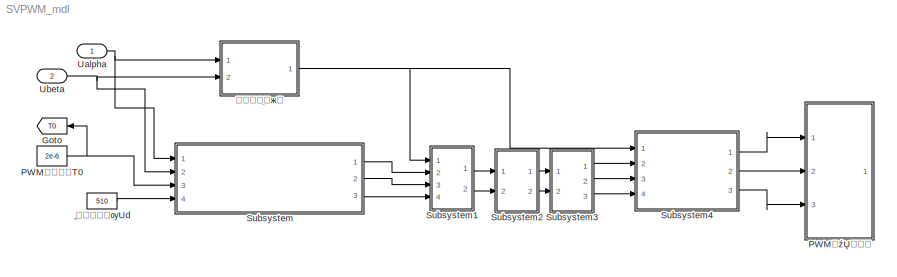
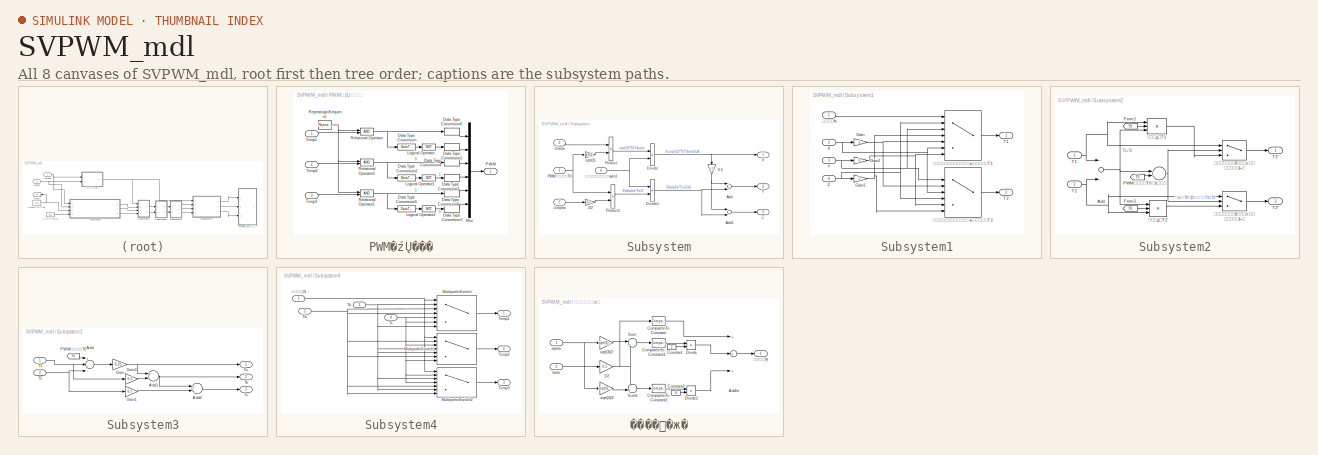
[diagram: thumbnail index - all 8 canvases of the model, root first then tree order]
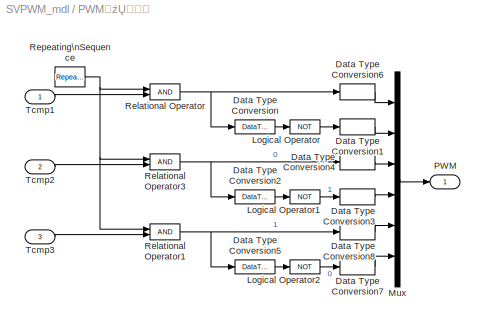
MODEL SVPWM_mdl
KIND model
BLOCK [Goto] Goto
  GotoTag = T0
  SID = 180
  TagVisibility = global
BLOCK [SubSystem] PWMÐÅºÅ²úÉú
  Ports = [3, 1]
  RequestExecContextInheritance = off
  SID = 156
  Variant = off
BLOCK [DataTypeConversion] PWMÐÅºÅ²úÉú/Data Type Conversion
  OutDataTypeStr = boolean
  RndMeth = Floor
  SID = 160
  SaturateOnIntegerOverflow = off
BLOCK [DataTypeConversion] PWMÐÅºÅ²úÉú/Data Type Conversion1
  OutDataTypeStr = double
  RndMeth = Floor
  SID = 161
  SaturateOnIntegerOverflow = off
BLOCK [DataTypeConversion] PWMÐÅºÅ²úÉú/Data Type Conversion2
  OutDataTypeStr = boolean
  RndMeth = Floor
  SID = 162
  SaturateOnIntegerOverflow = off
BLOCK [DataTypeConversion] PWMÐÅºÅ²úÉú/Data Type Conversion3
  OutDataTypeStr = double
  RndMeth = Floor
  SID = 163
  SaturateOnIntegerOverflow = off
BLOCK [DataTypeConversion] PWMÐÅºÅ²úÉú/Data Type Conversion4
  OutDataTypeStr = double
  RndMeth = Floor
  SID = 164
  SaturateOnIntegerOverflow = off
BLOCK [DataTypeConversion] PWMÐÅºÅ²úÉú/Data Type Conversion5
  OutDataTypeStr = boolean
  RndMeth = Floor
  SID = 165
  SaturateOnIntegerOverflow = off
BLOCK [DataTypeConversion] PWMÐÅºÅ²úÉú/Data Type Conversion6
  OutDataTypeStr = double
  RndMeth = Floor
  SID = 166
  SaturateOnIntegerOverflow = off
BLOCK [DataTypeConversion] PWMÐÅºÅ²úÉú/Data Type Conversion7
  OutDataTypeStr = double
  RndMeth = Floor
  SID = 167
  SaturateOnIntegerOverflow = off
BLOCK [DataTypeConversion] PWMÐÅºÅ²úÉú/Data Type Conversion8
  OutDataTypeStr = double
  RndMeth = Floor
  SID = 168
  SaturateOnIntegerOverflow = off
BLOCK [Logic] PWMÐÅºÅ²úÉú/Logical Operator
  AllPortsSameDT = off
  Operator = NOT
  OutDataTypeStr = boolean
  Ports = [1, 1]
  SID = 169
BLOCK [Logic] PWMÐÅºÅ²úÉú/Logical Operator1
  AllPortsSameDT = off
  Operator = NOT
  OutDataTypeStr = boolean
  Ports = [1, 1]
  SID = 170
BLOCK [Logic] PWMÐÅºÅ²úÉú/Logical Operator2
  AllPortsSameDT = off
  Operator = NOT
  OutDataTypeStr = boolean
  Ports = [1, 1]
  SID = 171
BLOCK [Mux] PWMÐÅºÅ²úÉú/Mux
  DisplayOption = bar
  Inputs = 6
  Ports = [6, 1]
  SID = 172
BLOCK [Outport] PWMÐÅºÅ²úÉú/PWM
  IconDisplay = Port number
  SID = 177
BLOCK [RelationalOperator] PWMÐÅºÅ²úÉú/Relational Operator
  InputSameDT = off
  OutDataTypeStr = boolean
  Ports = [2, 1]
  SID = 173
BLOCK [RelationalOperator] PWMÐÅºÅ²úÉú/Relational Operator1
  InputSameDT = off
  OutDataTypeStr = boolean
  Ports = [2, 1]
  SID = 174
BLOCK [RelationalOperator] PWMÐÅºÅ²úÉú/Relational Operator3
  InputSameDT = off
  OutDataTypeStr = boolean
  Ports = [2, 1]
  SID = 175
BLOCK [Reference] PWMÐÅºÅ²úÉú/Repeating\nSequence  REF=simulink/Sources/Repeating\nSequence
  Ports = [0, 1]
  SID = 176
  SourceBlock = simulink/Sources/Repeating\nSequence
  SourceProductBaseCode = SL
  SourceProductName = Simulink
  SourceType = Repeating table
  rep_seq_t = [0 1e-4 2e-4]
  rep_seq_y = [0 1.3e-6 0]
BLOCK [Inport] PWMÐÅºÅ²úÉú/Tcmp1
  IconDisplay = Port number
  SID = 157
BLOCK [Inport] PWMÐÅºÅ²úÉú/Tcmp2
  IconDisplay = Port number
  Port = 2
  SID = 158
BLOCK [Inport] PWMÐÅºÅ²úÉú/Tcmp3
  IconDisplay = Port number
  Port = 3
  SID = 159
BLOCK [Constant] PWMÖÜÆÚT0
  SID = 181
  Value = 2e-6
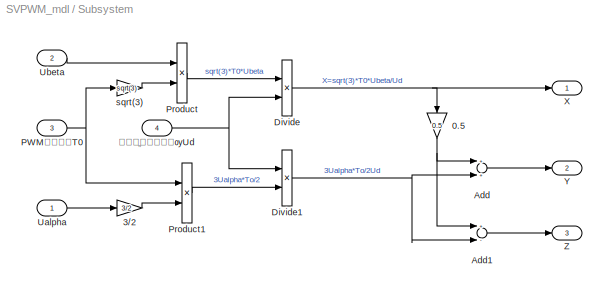
BLOCK [SubSystem] Subsystem
  Ports = [4, 3]
  RequestExecContextInheritance = off
  SID = 52
  Variant = off
BLOCK [Gain] Subsystem/0.5
  Gain = 0.5
  OutDataTypeStr = Inherit: Inherit via internal rule
  ParamDataTypeStr = Inherit: Inherit via internal rule
  SID = 40
  SaturateOnIntegerOverflow = off
BLOCK [Gain] Subsystem/3//2
  Gain = 3/2
  OutDataTypeStr = Inherit: Inherit via internal rule
  ParamDataTypeStr = Inherit: Inherit via internal rule
  SID = 41
  SaturateOnIntegerOverflow = off
BLOCK [Sum] Subsystem/Add
  InputSameDT = off
  OutDataTypeStr = Inherit: Inherit via internal rule
  Ports = [2, 1]
  SID = 42
  SaturateOnIntegerOverflow = off
BLOCK [Sum] Subsystem/Add1
  InputSameDT = off
  Inputs = +-
  OutDataTypeStr = Inherit: Inherit via internal rule
  Ports = [2, 1]
  SID = 43
  SaturateOnIntegerOverflow = off
BLOCK [Product] Subsystem/Divide
  InputSameDT = off
  Inputs = */
  OutDataTypeStr = Inherit: Inherit via internal rule
  Ports = [2, 1]
  RndMeth = Floor
  SID = 44
  SaturateOnIntegerOverflow = off
BLOCK [Product] Subsystem/Divide1
  InputSameDT = off
  Inputs = /*
  OutDataTypeStr = Inherit: Inherit via internal rule
  Ports = [2, 1]
  RndMeth = Floor
  SID = 45
  SaturateOnIntegerOverflow = off
BLOCK [Inport] Subsystem/PWMÖÜÆÚT0
  IconDisplay = Port number
  Port = 3
  SID = 55
BLOCK [Product] Subsystem/Product
  InputSameDT = off
  OutDataTypeStr = Inherit: Inherit via internal rule
  Ports = [2, 1]
  RndMeth = Floor
  SID = 46
  SaturateOnIntegerOverflow = off
BLOCK [Product] Subsystem/Product1
  InputSameDT = off
  OutDataTypeStr = Inherit: Inherit via internal rule
  Ports = [2, 1]
  RndMeth = Floor
  SID = 47
  SaturateOnIntegerOverflow = off
BLOCK [Inport] Subsystem/Ualpha
  IconDisplay = Port number
  SID = 53
BLOCK [Inport] Subsystem/Ubeta
  IconDisplay = Port number
  Port = 2
  SID = 54
BLOCK [Outport] Subsystem/X
  IconDisplay = Port number
  SID = 57
BLOCK [Outport] Subsystem/Y
  IconDisplay = Port number
  Port = 2
  SID = 58
BLOCK [Outport] Subsystem/Z
  IconDisplay = Port number
  Port = 3
  SID = 59
BLOCK [Gain] Subsystem/sqrt(3) 
  Gain = sqrt(3)
  OutDataTypeStr = Inherit: Inherit via internal rule
  ParamDataTypeStr = Inherit: Inherit via internal rule
  SID = 48
  SaturateOnIntegerOverflow = off
BLOCK [Inport] Subsystem/逆变直流侧电压Ud
  IconDisplay = Port number
  Port = 4
  SID = 56
BLOCK [SubSystem] Subsystem1
  Ports = [4, 2]
  RequestExecContextInheritance = off
  SID = 89
  Variant = off
BLOCK [Gain] Subsystem1/Gain
  Gain = -1
  OutDataTypeStr = Inherit: Inherit via internal rule
  ParamDataTypeStr = Inherit: Inherit via internal rule
  SID = 76
  SaturateOnIntegerOverflow = off
BLOCK [Gain] Subsystem1/Gain1
  Gain = -1
  OutDataTypeStr = Inherit: Inherit via internal rule
  ParamDataTypeStr = Inherit: Inherit via internal rule
  SID = 77
  SaturateOnIntegerOverflow = off
BLOCK [Gain] Subsystem1/Gain2
  Gain = -1
  OutDataTypeStr = Inherit: Inherit via internal rule
  ParamDataTypeStr = Inherit: Inherit via internal rule
  SID = 78
  SaturateOnIntegerOverflow = off
BLOCK [Outport] Subsystem1/T1
  IconDisplay = Port number
  SID = 94
BLOCK [Outport] Subsystem1/T2
  IconDisplay = Port number
  Port = 2
  SID = 95
BLOCK [Inport] Subsystem1/X
  IconDisplay = Port number
  Port = 2
  SID = 91
BLOCK [Inport] Subsystem1/Y
  IconDisplay = Port number
  Port = 3
  SID = 92
BLOCK [Inport] Subsystem1/Z
  IconDisplay = Port number
  Port = 4
  SID = 93
BLOCK [MultiPortSwitch] Subsystem1/根据输入扇区 选择输出T1
  InputSameDT = off
  Inputs = 6
  Ports = [7, 1]
  SID = 85
  SaturateOnIntegerOverflow = off
BLOCK [MultiPortSwitch] Subsystem1/根据输入扇区 选择输出T2
  InputSameDT = off
  Inputs = 6
  Ports = [7, 1]
  SID = 86
  SaturateOnIntegerOverflow = off
BLOCK [Inport] Subsystem1/ÉÈÇøÖµN
  IconDisplay = Port number
  SID = 90
BLOCK [SubSystem] Subsystem2
  Ports = [2, 2]
  RequestExecContextInheritance = off
  SID = 109
  Variant = off
BLOCK [Sum] Subsystem2/Add
  InputSameDT = off
  OutDataTypeStr = Inherit: Inherit via internal rule
  Ports = [2, 1]
  SID = 98
  SaturateOnIntegerOverflow = off
BLOCK [From] Subsystem2/From1
  GotoTag = T0
  SID = 99
  TagVisibility = global
BLOCK [From] Subsystem2/From2
  GotoTag = T0
  SID = 100
  TagVisibility = global
BLOCK [From] Subsystem2/PWMÖÜÆÚT0
  GotoTag = T0
  SID = 101
  TagVisibility = global
BLOCK [Inport] Subsystem2/T1
  IconDisplay = Port number
  SID = 110
BLOCK [Outport] Subsystem2/T1*
  IconDisplay = Port number
  SID = 112
BLOCK [Inport] Subsystem2/T2
  IconDisplay = Port number
  Port = 2
  SID = 111
BLOCK [Outport] Subsystem2/T2*
  IconDisplay = Port number
  Port = 2
  SID = 113
BLOCK [Sum] Subsystem2/比较器
  InputSameDT = off
  Inputs = -+
  OutDataTypeStr = Inherit: Inherit via internal rule
  Ports = [2, 1]
  SID = 104
  SaturateOnIntegerOverflow = off
BLOCK [Product] Subsystem2/µ÷ÖÆºóT1
  InputSameDT = off
  Inputs = **/
  OutDataTypeStr = Inherit: Inherit via internal rule
  Ports = [3, 1]
  RndMeth = Floor
  SID = 105
  SaturateOnIntegerOverflow = off
BLOCK [Product] Subsystem2/µ÷ÖÆºóT2
  InputSameDT = off
  Inputs = /**
  OutDataTypeStr = Inherit: Inherit via internal rule
  Ports = [3, 1]
  RndMeth = Floor
  SID = 106
  SaturateOnIntegerOverflow = off
BLOCK [Switch] Subsystem2/如果大于0则切换开关到上方
  Criteria = u2 > Threshold
  InputSameDT = off
  SID = 102
  SaturateOnIntegerOverflow = off
BLOCK [Switch] Subsystem2/如果大于0则切换开关到上方 
  Criteria = u2 > Threshold
  InputSameDT = off
  SID = 103
  SaturateOnIntegerOverflow = off
BLOCK [SubSystem] Subsystem3
  Ports = [2, 3]
  RequestExecContextInheritance = off
  SID = 132
  Variant = off
BLOCK [Sum] Subsystem3/Add
  InputSameDT = off
  Inputs = +--
  OutDataTypeStr = Inherit: Inherit via internal rule
  Ports = [3, 1]
  SID = 116
  SaturateOnIntegerOverflow = off
BLOCK [Sum] Subsystem3/Add1
  InputSameDT = off
  OutDataTypeStr = Inherit: Inherit via internal rule
  Ports = [2, 1]
  SID = 117
  SaturateOnIntegerOverflow = off
BLOCK [Sum] Subsystem3/Add2
  InputSameDT = off
  OutDataTypeStr = Inherit: Inherit via internal rule
  Ports = [2, 1]
  SID = 118
  SaturateOnIntegerOverflow = off
BLOCK [Gain] Subsystem3/Gain
  Gain = 0.25
  OutDataTypeStr = Inherit: Inherit via internal rule
  ParamDataTypeStr = Inherit: Inherit via internal rule
  SID = 123
  SaturateOnIntegerOverflow = off
BLOCK [Gain] Subsystem3/Gain1
  Gain = 0.5
  OutDataTypeStr = Inherit: Inherit via internal rule
  ParamDataTypeStr = Inherit: Inherit via internal rule
  SID = 124
  SaturateOnIntegerOverflow = off
BLOCK [Gain] Subsystem3/Gain3
  Gain = 0.5
  OutDataTypeStr = Inherit: Inherit via internal rule
  ParamDataTypeStr = Inherit: Inherit via internal rule
  SID = 125
  SaturateOnIntegerOverflow = off
BLOCK [From] Subsystem3/PWMÖÜÆÚT0
  GotoTag = T0
  SID = 128
  TagVisibility = global
BLOCK [Inport] Subsystem3/T1
  IconDisplay = Port number
  SID = 133
BLOCK [Inport] Subsystem3/T2
  IconDisplay = Port number
  Port = 2
  SID = 134
BLOCK [Outport] Subsystem3/Ta
  IconDisplay = Port number
  SID = 135
BLOCK [Outport] Subsystem3/Tb
  IconDisplay = Port number
  Port = 2
  SID = 136
BLOCK [Outport] Subsystem3/Tc
  IconDisplay = Port number
  Port = 3
  SID = 137
BLOCK [SubSystem] Subsystem4
  Ports = [4, 3]
  RequestExecContextInheritance = off
  SID = 148
  Variant = off
BLOCK [MultiPortSwitch] Subsystem4/Multiport\nSwitch
  InputSameDT = off
  Inputs = 6
  OutDataTypeStr = double
  Ports = [7, 1]
  SID = 142
  SaturateOnIntegerOverflow = off
BLOCK [MultiPortSwitch] Subsystem4/Multiport\nSwitch1
  InputSameDT = off
  Inputs = 6
  OutDataTypeStr = double
  Ports = [7, 1]
  SID = 143
  SaturateOnIntegerOverflow = off
BLOCK [MultiPortSwitch] Subsystem4/Multiport\nSwitch2
  InputSameDT = off
  Inputs = 6
  OutDataTypeStr = double
  Ports = [7, 1]
  SID = 144
  SaturateOnIntegerOverflow = off
BLOCK [Inport] Subsystem4/Ta
  IconDisplay = Port number
  Port = 2
  SID = 150
BLOCK [Inport] Subsystem4/Tb
  IconDisplay = Port number
  Port = 3
  SID = 151
BLOCK [Inport] Subsystem4/Tc
  IconDisplay = Port number
  Port = 4
  SID = 152
BLOCK [Outport] Subsystem4/Tcmp1
  IconDisplay = Port number
  SID = 153
BLOCK [Outport] Subsystem4/Tcmp2
  IconDisplay = Port number
  Port = 2
  SID = 154
BLOCK [Outport] Subsystem4/Tcmp3
  IconDisplay = Port number
  Port = 3
  SID = 155
BLOCK [Inport] Subsystem4/ÉÈÇøÖµN
  IconDisplay = Port number
  SID = 149
BLOCK [Inport] Ualpha
  IconDisplay = Port number
  SID = 178
BLOCK [Inport] Ubeta
  IconDisplay = Port number
  Port = 2
  SID = 179
BLOCK [SubSystem] 扇区值判定
  Ports = [2, 1]
  RequestExecContextInheritance = off
  SID = 32
  Variant = off
BLOCK [Gain] 扇区值判定/-sqrt(3)//2
  Gain = -sqrt(3)/2
  OutDataTypeStr = Inherit: Inherit via internal rule
  ParamDataTypeStr = Inherit: Inherit via internal rule
  SID = 16
  SaturateOnIntegerOverflow = off
BLOCK [Gain] 扇区值判定/1//2
  Gain = 0.5
  OutDataTypeStr = Inherit: Inherit via internal rule
  ParamDataTypeStr = Inherit: Inherit via internal rule
  SID = 14
  SaturateOnIntegerOverflow = off
BLOCK [Sum] 扇区值判定/Add\n
  InputSameDT = off
  Inputs = +++
  OutDataTypeStr = Inherit: Inherit via internal rule
  Ports = [3, 1]
  SID = 30
  SaturateOnIntegerOverflow = off
BLOCK [Reference] 扇区值判定/Compare\nTo Constant  REF=simulink/Logic and Bit\nOperations/Compare\nTo Constant
  OutDataTypeStr = boolean
  Ports = [1, 1]
  SID = 23
  SourceBlock = simulink/Logic and Bit\nOperations/Compare\nTo Constant
  SourceProductBaseCode = SL
  SourceProductName = Simulink
  SourceType = Compare To Constant
  ZeroCross = on
  const = 0
  relop = >
BLOCK [Reference] 扇区值判定/Compare\nTo Constant1  REF=simulink/Logic and Bit\nOperations/Compare\nTo Constant
  OutDataTypeStr = boolean
  Ports = [1, 1]
  SID = 24
  SourceBlock = simulink/Logic and Bit\nOperations/Compare\nTo Constant
  SourceProductBaseCode = SL
  SourceProductName = Simulink
  SourceType = Compare To Constant
  ZeroCross = on
  const = 0
  relop = >
BLOCK [Reference] 扇区值判定/Compare\nTo Constant2  REF=simulink/Logic and Bit\nOperations/Compare\nTo Constant
  OutDataTypeStr = boolean
  Ports = [1, 1]
  SID = 25
  SourceBlock = simulink/Logic and Bit\nOperations/Compare\nTo Constant
  SourceProductBaseCode = SL
  SourceProductName = Simulink
  SourceType = Compare To Constant
  ZeroCross = on
  const = 0
  relop = >
BLOCK [Constant] 扇区值判定/Constant
  SID = 26
  Value = 2
BLOCK [Constant] 扇区值判定/Constant2
  SID = 28
  Value = 4
BLOCK [Product] 扇区值判定/Divide
  InputSameDT = off
  Inputs = **
  OutDataTypeStr = Inherit: Inherit via internal rule
  Ports = [2, 1]
  RndMeth = Floor
  SID = 27
  SaturateOnIntegerOverflow = off
BLOCK [Product] 扇区值判定/Divide2
  InputSameDT = off
  Inputs = **
  OutDataTypeStr = Inherit: Inherit via internal rule
  Ports = [2, 1]
  RndMeth = Floor
  SID = 29
  SaturateOnIntegerOverflow = off
BLOCK [Sum] 扇区值判定/Sum
  IconShape = round
  InputSameDT = off
  Inputs = |+-
  OutDataTypeStr = Inherit: Inherit via internal rule
  Ports = [2, 1]
  SID = 15
  SaturateOnIntegerOverflow = off
BLOCK [Sum] 扇区值判定/Sum1
  IconShape = round
  InputSameDT = off
  Inputs = -+|
  OutDataTypeStr = Inherit: Inherit via internal rule
  Ports = [2, 1]
  SID = 20
  SaturateOnIntegerOverflow = off
BLOCK [Inport] 扇区值判定/alpha
  IconDisplay = Port number
  SID = 33
BLOCK [Inport] 扇区值判定/beta
  IconDisplay = Port number
  Port = 2
  SID = 34
BLOCK [Gain] 扇区值判定/sqrt(3)//2
  Gain = sqrt(3)/2
  OutDataTypeStr = Inherit: Inherit via internal rule
  ParamDataTypeStr = Inherit: Inherit via internal rule
  SID = 13
  SaturateOnIntegerOverflow = off
BLOCK [Outport] 扇区值判定/ÉÈÇøÖµN
  IconDisplay = Port number
  SID = 35
BLOCK [Constant] 直流侧电压Ud
  SID = 182
  Value = 510
LINE PWMÐÅºÅ²úÉú/Data Type Conversion1:1 -> PWMÐÅºÅ²úÉú/Mux:2
LINE PWMÐÅºÅ²úÉú/Data Type Conversion2:1 -> PWMÐÅºÅ²úÉú/Logical Operator1:1
LINE PWMÐÅºÅ²úÉú/Data Type Conversion3:1 -> PWMÐÅºÅ²úÉú/Mux:4
LINE PWMÐÅºÅ²úÉú/Data Type Conversion4:1 -> PWMÐÅºÅ²úÉú/Mux:3
LINE PWMÐÅºÅ²úÉú/Data Type Conversion5:1 -> PWMÐÅºÅ²úÉú/Logical Operator2:1
LINE PWMÐÅºÅ²úÉú/Data Type Conversion6:1 -> PWMÐÅºÅ²úÉú/Mux:1
LINE PWMÐÅºÅ²úÉú/Data Type Conversion7:1 -> PWMÐÅºÅ²úÉú/Mux:6
LINE PWMÐÅºÅ²úÉú/Data Type Conversion8:1 -> PWMÐÅºÅ²úÉú/Mux:5
LINE PWMÐÅºÅ²úÉú/Data Type Conversion:1 -> PWMÐÅºÅ²úÉú/Logical Operator:1
LINE PWMÐÅºÅ²úÉú/Logical Operator1:1 -> PWMÐÅºÅ²úÉú/Data Type Conversion3:1
LINE PWMÐÅºÅ²úÉú/Logical Operator2:1 -> PWMÐÅºÅ²úÉú/Data Type Conversion7:1
LINE PWMÐÅºÅ²úÉú/Logical Operator:1 -> PWMÐÅºÅ²úÉú/Data Type Conversion1:1
LINE PWMÐÅºÅ²úÉú/Mux:1 -> PWMÐÅºÅ²úÉú/PWM:1
NET PWMÐÅºÅ²úÉú/Relational Operator1:1 -> PWMÐÅºÅ²úÉú/Data Type Conversion5:1, PWMÐÅºÅ²úÉú/Data Type Conversion8:1
NET PWMÐÅºÅ²úÉú/Relational Operator3:1 -> PWMÐÅºÅ²úÉú/Data Type Conversion2:1, PWMÐÅºÅ²úÉú/Data Type Conversion4:1
NET PWMÐÅºÅ²úÉú/Relational Operator:1 -> PWMÐÅºÅ²úÉú/Data Type Conversion6:1, PWMÐÅºÅ²úÉú/Data Type Conversion:1
NET PWMÐÅºÅ²úÉú/Repeating\nSequence:1 -> PWMÐÅºÅ²úÉú/Relational Operator1:1, PWMÐÅºÅ²úÉú/Relational Operator3:1, PWMÐÅºÅ²úÉú/Relational Operator:1
LINE PWMÐÅºÅ²úÉú/Tcmp1:1 -> PWMÐÅºÅ²úÉú/Relational Operator:2
LINE PWMÐÅºÅ²úÉú/Tcmp2:1 -> PWMÐÅºÅ²úÉú/Relational Operator3:2
LINE PWMÐÅºÅ²úÉú/Tcmp3:1 -> PWMÐÅºÅ²úÉú/Relational Operator1:2
NET PWMÖÜÆÚT0:1 -> Goto:1, Subsystem:3
NET Subsystem/0.5:1 -> Subsystem/Add1:1, Subsystem/Add:1
LINE Subsystem/3//2:1 -> Subsystem/Product1:2
LINE Subsystem/Add1:1 -> Subsystem/Z:1
LINE Subsystem/Add:1 -> Subsystem/Y:1
NET Subsystem/Divide1:1 -> Subsystem/Add1:2, Subsystem/Add:2
NET Subsystem/Divide:1 -> Subsystem/0.5:1, Subsystem/X:1
NET Subsystem/PWMÖÜÆÚT0:1 -> Subsystem/Product1:1, Subsystem/sqrt(3) :1
LINE Subsystem/Product1:1 -> Subsystem/Divide1:2
LINE Subsystem/Product:1 -> Subsystem/Divide:1
LINE Subsystem/Ualpha:1 -> Subsystem/3//2:1
LINE Subsystem/Ubeta:1 -> Subsystem/Product:1
LINE Subsystem/sqrt(3) :1 -> Subsystem/Product:2
NET Subsystem/逆变直流侧电压Ud:1 -> Subsystem/Divide1:1, Subsystem/Divide:2
NET Subsystem1/Gain1:1 -> Subsystem1/根据输入扇区 选择输出T1:4, Subsystem1/根据输入扇区 选择输出T2:7
NET Subsystem1/Gain2:1 -> Subsystem1/根据输入扇区 选择输出T1:7, Subsystem1/根据输入扇区 选择输出T2:6
NET Subsystem1/Gain:1 -> Subsystem1/根据输入扇区 选择输出T1:5, Subsystem1/根据输入扇区 选择输出T2:3
NET Subsystem1/X:1 -> Subsystem1/Gain:1, Subsystem1/根据输入扇区 选择输出T1:6, Subsystem1/根据输入扇区 选择输出T2:4
NET Subsystem1/Y:1 -> Subsystem1/Gain2:1, Subsystem1/根据输入扇区 选择输出T1:3, Subsystem1/根据输入扇区 选择输出T2:2
NET Subsystem1/Z:1 -> Subsystem1/Gain1:1, Subsystem1/根据输入扇区 选择输出T1:2, Subsystem1/根据输入扇区 选择输出T2:5
LINE Subsystem1/根据输入扇区 选择输出T1:1 -> Subsystem1/T1:1
LINE Subsystem1/根据输入扇区 选择输出T2:1 -> Subsystem1/T2:1
LINE Subsystem1/ÉÈÇøÖµN:1 -> Subsystem1/根据输入扇区 选择输出T1:1
LINE Subsystem1:1 -> Subsystem2:1
LINE Subsystem1:2 -> Subsystem2:2
NET Subsystem2/Add:1 -> Subsystem2/比较器:1, Subsystem2/µ÷ÖÆºóT1:3, Subsystem2/µ÷ÖÆºóT2:1
LINE Subsystem2/From1:1 -> Subsystem2/µ÷ÖÆºóT1:2
LINE Subsystem2/From2:1 -> Subsystem2/µ÷ÖÆºóT2:2
LINE Subsystem2/PWMÖÜÆÚT0:1 -> Subsystem2/比较器:2
NET Subsystem2/T1:1 -> Subsystem2/Add:1, Subsystem2/µ÷ÖÆºóT1:1, Subsystem2/如果大于0则切换开关到上方:1
NET Subsystem2/T2:1 -> Subsystem2/Add:2, Subsystem2/µ÷ÖÆºóT2:3, Subsystem2/如果大于0则切换开关到上方 :1
NET Subsystem2/比较器:1 -> Subsystem2/如果大于0则切换开关到上方 :2, Subsystem2/如果大于0则切换开关到上方:2
LINE Subsystem2/µ÷ÖÆºóT1:1 -> Subsystem2/如果大于0则切换开关到上方:3
LINE Subsystem2/µ÷ÖÆºóT2:1 -> Subsystem2/如果大于0则切换开关到上方 :3
LINE Subsystem2/如果大于0则切换开关到上方 :1 -> Subsystem2/T2*:1
LINE Subsystem2/如果大于0则切换开关到上方:1 -> Subsystem2/T1*:1
LINE Subsystem2:1 -> Subsystem3:1
LINE Subsystem2:2 -> Subsystem3:2
NET Subsystem3/Add1:1 -> Subsystem3/Add2:1, Subsystem3/Tb:1
LINE Subsystem3/Add2:1 -> Subsystem3/Tc:1
LINE Subsystem3/Add:1 -> Subsystem3/Gain:1
LINE Subsystem3/Gain1:1 -> Subsystem3/Add2:2
LINE Subsystem3/Gain3:1 -> Subsystem3/Add1:2
NET Subsystem3/Gain:1 -> Subsystem3/Add1:1, Subsystem3/Ta:1
LINE Subsystem3/PWMÖÜÆÚT0:1 -> Subsystem3/Add:1
NET Subsystem3/T1:1 -> Subsystem3/Add:2, Subsystem3/Gain3:1
NET Subsystem3/T2:1 -> Subsystem3/Add:3, Subsystem3/Gain1:1
LINE Subsystem3:1 -> Subsystem4:2
LINE Subsystem3:2 -> Subsystem4:3
LINE Subsystem3:3 -> Subsystem4:4
LINE Subsystem4/Multiport\nSwitch1:1 -> Subsystem4/Tcmp2:1
LINE Subsystem4/Multiport\nSwitch2:1 -> Subsystem4/Tcmp3:1
LINE Subsystem4/Multiport\nSwitch:1 -> Subsystem4/Tcmp1:1
NET Subsystem4/Ta:1 -> Subsystem4/Multiport\nSwitch1:2, Subsystem4/Multiport\nSwitch1:6, Subsystem4/Multiport\nSwitch2:5, Subsystem4/Multiport\nSwitch2:7, Subsystem4/Multiport\nSwitch:3, Subsystem4/Multiport\nSwitch:4
NET Subsystem4/Tb:1 -> Subsystem4/Multiport\nSwitch1:4, Subsystem4/Multiport\nSwitch1:5, Subsystem4/Multiport\nSwitch2:3, Subsystem4/Multiport\nSwitch2:6, Subsystem4/Multiport\nSwitch:2, Subsystem4/Multiport\nSwitch:7
NET Subsystem4/Tc:1 -> Subsystem4/Multiport\nSwitch1:3, Subsystem4/Multiport\nSwitch1:7, Subsystem4/Multiport\nSwitch2:2, Subsystem4/Multiport\nSwitch2:4, Subsystem4/Multiport\nSwitch:5, Subsystem4/Multiport\nSwitch:6
NET Subsystem4/ÉÈÇøÖµN:1 -> Subsystem4/Multiport\nSwitch1:1, Subsystem4/Multiport\nSwitch2:1, Subsystem4/Multiport\nSwitch:1
LINE Subsystem4:1 -> PWMÐÅºÅ²úÉú:1
LINE Subsystem4:2 -> PWMÐÅºÅ²úÉú:2
LINE Subsystem4:3 -> PWMÐÅºÅ²úÉú:3
LINE Subsystem:1 -> Subsystem1:2
LINE Subsystem:2 -> Subsystem1:3
LINE Subsystem:3 -> Subsystem1:4
NET Ualpha:1 -> Subsystem:1, 扇区值判定:1
NET Ubeta:1 -> Subsystem:2, 扇区值判定:2
LINE 扇区值判定/-sqrt(3)//2:1 -> 扇区值判定/Sum1:2
NET 扇区值判定/1//2:1 -> 扇区值判定/Compare\nTo Constant:1, 扇区值判定/Sum1:1, 扇区值判定/Sum:2
LINE 扇区值判定/Add\n:1 -> 扇区值判定/ÉÈÇøÖµN:1
LINE 扇区值判定/Compare\nTo Constant1:1 -> 扇区值判定/Divide:1
LINE 扇区值判定/Compare\nTo Constant2:1 -> 扇区值判定/Divide2:1
LINE 扇区值判定/Compare\nTo Constant:1 -> 扇区值判定/Add\n:1
LINE 扇区值判定/Constant2:1 -> 扇区值判定/Divide2:2
LINE 扇区值判定/Constant:1 -> 扇区值判定/Divide:2
LINE 扇区值判定/Divide2:1 -> 扇区值判定/Add\n:3
LINE 扇区值判定/Divide:1 -> 扇区值判定/Add\n:2
LINE 扇区值判定/Sum1:1 -> 扇区值判定/Compare\nTo Constant2:1
LINE 扇区值判定/Sum:1 -> 扇区值判定/Compare\nTo Constant1:1
NET 扇区值判定/alpha:1 -> 扇区值判定/-sqrt(3)//2:1, 扇区值判定/sqrt(3)//2:1
LINE 扇区值判定/beta:1 -> 扇区值判定/1//2:1
LINE 扇区值判定/sqrt(3)//2:1 -> 扇区值判定/Sum:1
NET 扇区值判定:1 -> Subsystem1:1, Subsystem4:1
LINE 直流侧电压Ud:1 -> Subsystem:4
note: NET lines group one-source signal fan-out (src -> all destinations, sorted); 1:1 wires keep LINE
